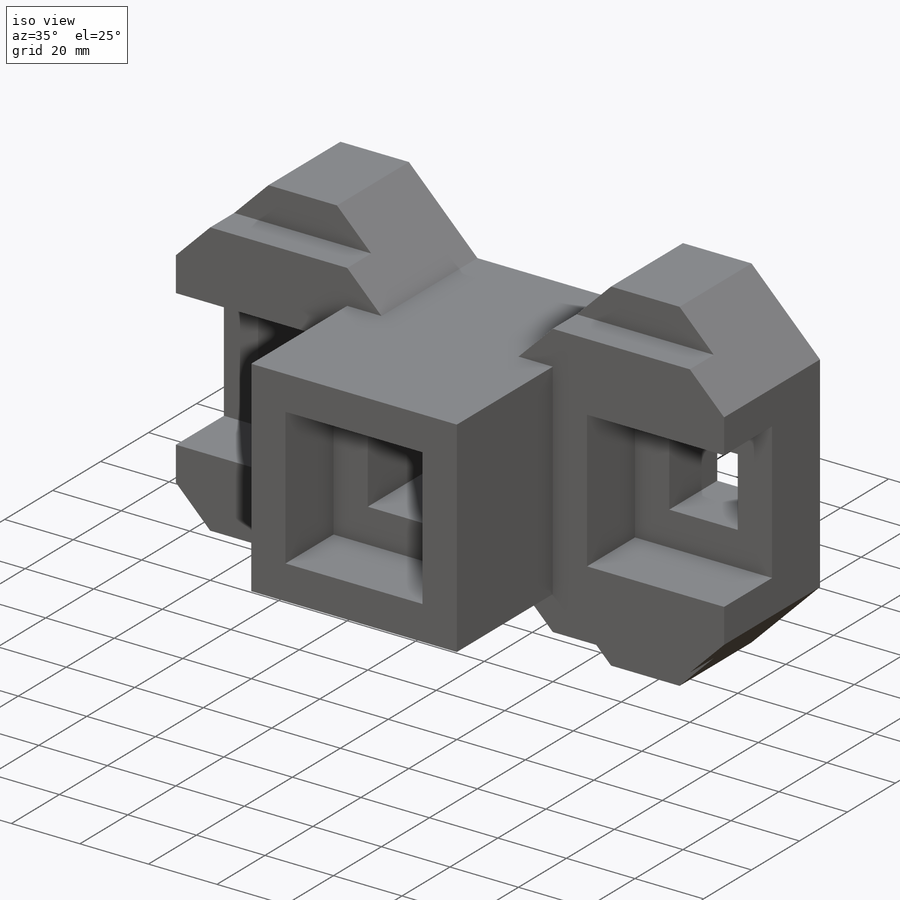
[diagram: iso view]
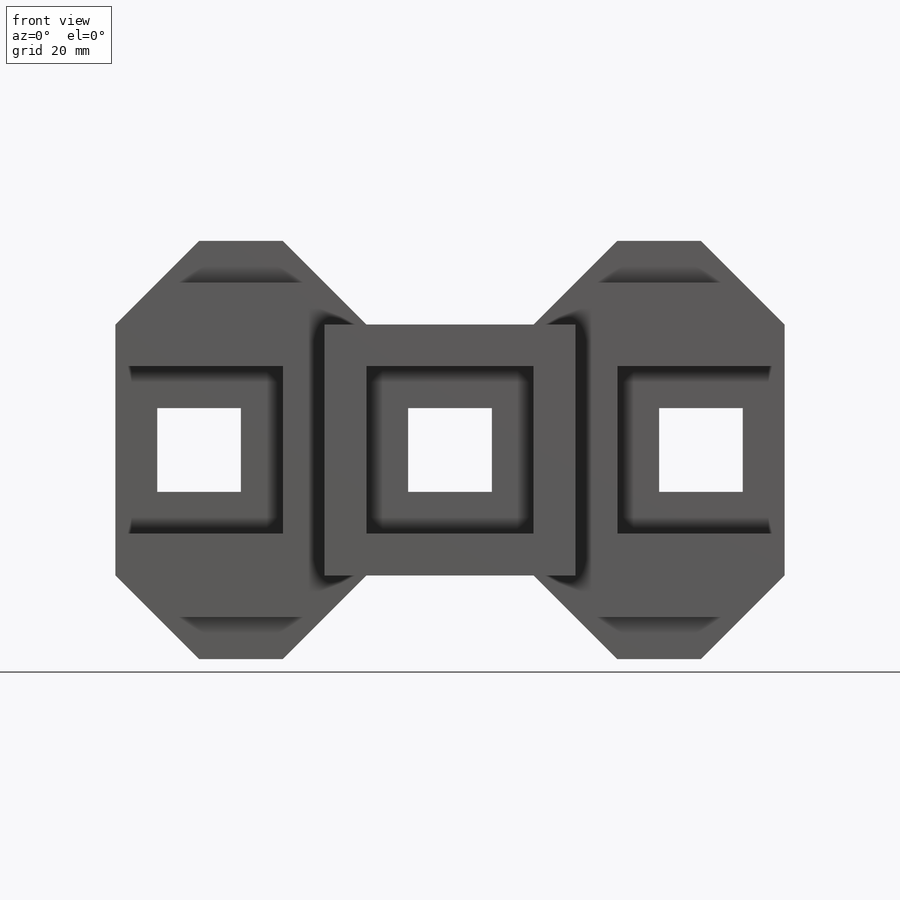
[diagram: front view]
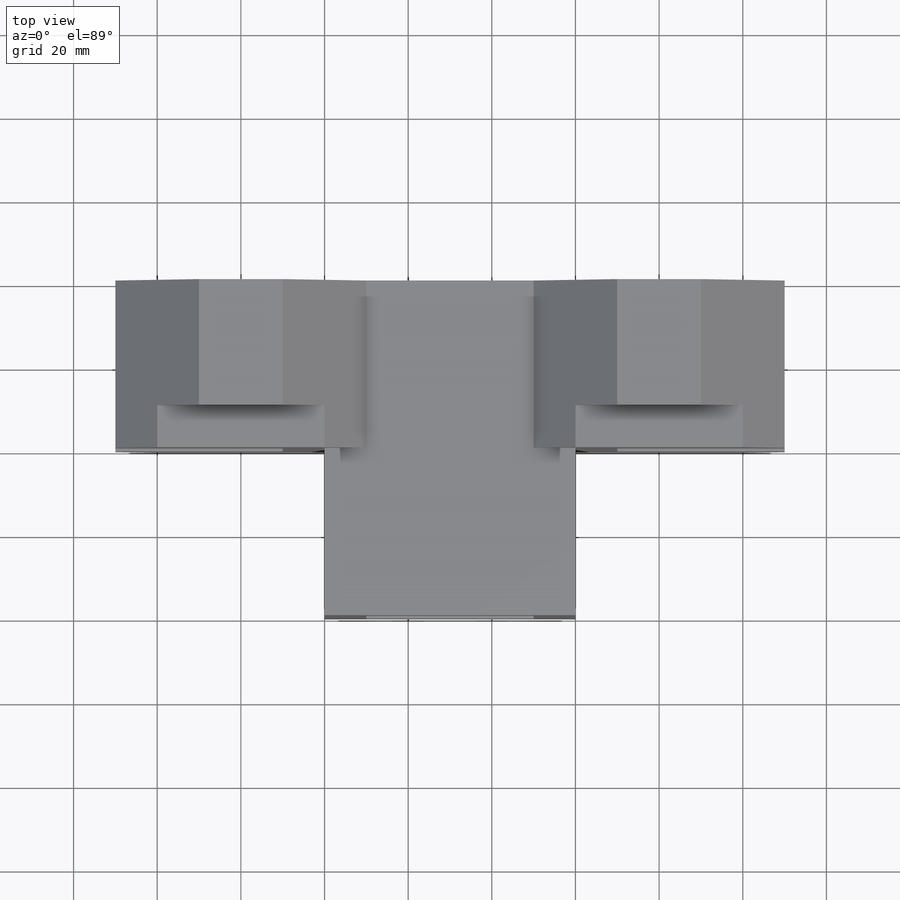
[diagram: top view]
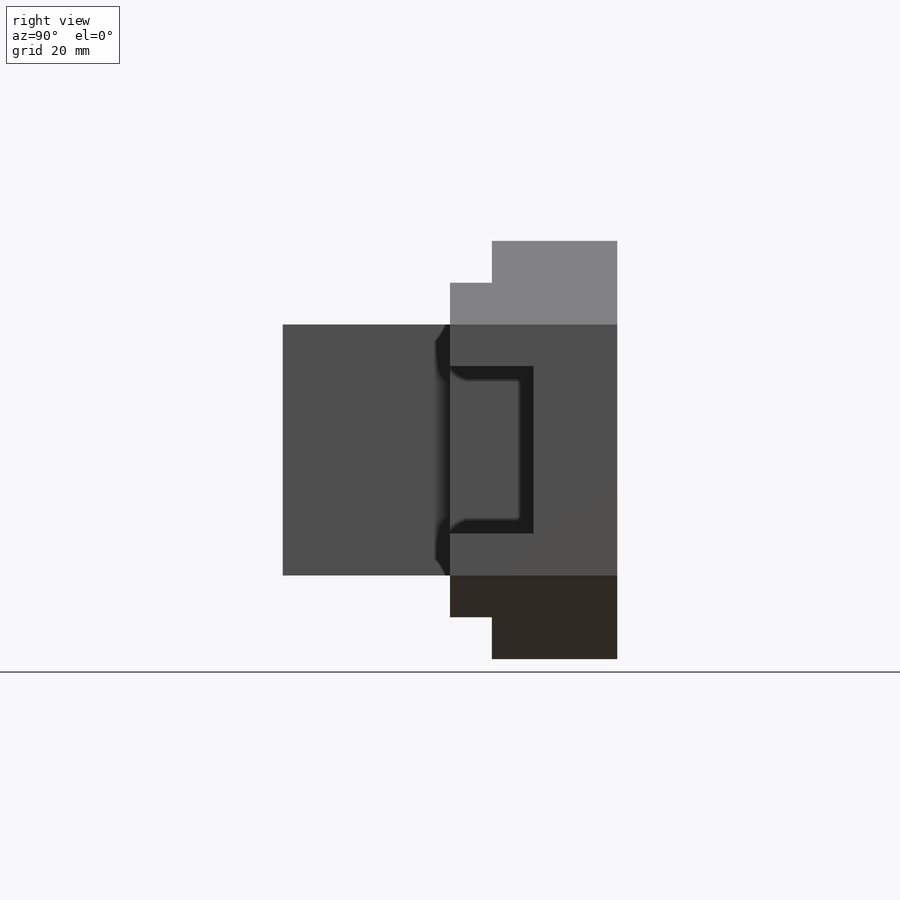
[diagram: right view]
SOLIDWORKS PART (.sldprt)
format: sldprt  version: not decoded by parser v0  size: 354,816 bytes
history: native  units: mm
features: sketch x11, cut_extrude x8, extrude x3, material x1 (+13 scaffold rows collapsed)
feature tree (36):
  scaffold x13  (default folders/planes/origin — collapsed)
  material  "Material <not specified>"
  sketch  "Sketch1"  dims[D1=60.0mm D2=60.0mm]
  extrude  "Boss-Extrude1"  Depth=80mm
  sketch  "Sketch2"  dims[D1=40.0mm D2=40.0mm D3=10.0mm D4=10.0mm]
  cut_extrude  "Cut-Extrude1"  Depth=20mm
  sketch  "Sketch3"  dims[D1=20.0mm D2=20.0mm D3=10.0mm D4=10.0mm]
  cut_extrude  "Cut-Extrude2"  Depth=136mm
  sketch  "Sketch5"  dims[c1.D1=20.0mm c1.D2=20.0mm c1.D3=20.0mm c1.D4=20.0mm c1.D5=10.0mm c1.D6=20.0mm c1.D7=10.0mm c1.D8=20.0mm c1.D9=20.0mm c2.D9=~11.696487deg c2.D10=0.0mm]
  extrude  "Boss-Extrude2"  Depth=40mm
  sketch  "Sketch6"  dims[D1=10.0mm D2=10.0mm]
  cut_extrude  "Cut-Extrude3"  Depth=10mm
  sketch  "Sketch7"  dims[D1=40.0mm D2=40.0mm D3=10.0mm]
  cut_extrude  "Cut-Extrude4"  Depth=20mm
  sketch  "Sketch8"  dims[D1=20.0mm D2=20.0mm D3=10.0mm D4=10.0mm]
  cut_extrude  "Cut-Extrude5"  Depth=20mm
  sketch  "Sketch9"  dims[D1=20.0mm D2=20.0mm D3=10.0mm D4=20.0mm D5=20.0mm D6=20.0mm D7=20.0mm D8=20.0mm D9=20.0mm D10=20.0mm D11=0.0mm]
  extrude  "Boss-Extrude3"  Depth=40mm
  sketch  "Sketch10"  dims[D1=10.0mm]
  cut_extrude  "Cut-Extrude6"  Depth=10mm
  sketch  "Sketch11"  dims[D1=40.0mm D2=40.0mm D3=10.0mm]
  cut_extrude  "Cut-Extrude7"  Depth=20mm
  sketch  "Sketch12"  dims[D1=20.0mm D2=20.0mm D3=10.0mm D4=10.0mm]
  cut_extrude  "Cut-Extrude8"  Depth=20mm
decode coverage: 22 of 22 modeling features carry decoded parameters
note: ~ marks probable driven/reference dimensions
note: suppression state not decoded; provenance and decode notes live in map.json
